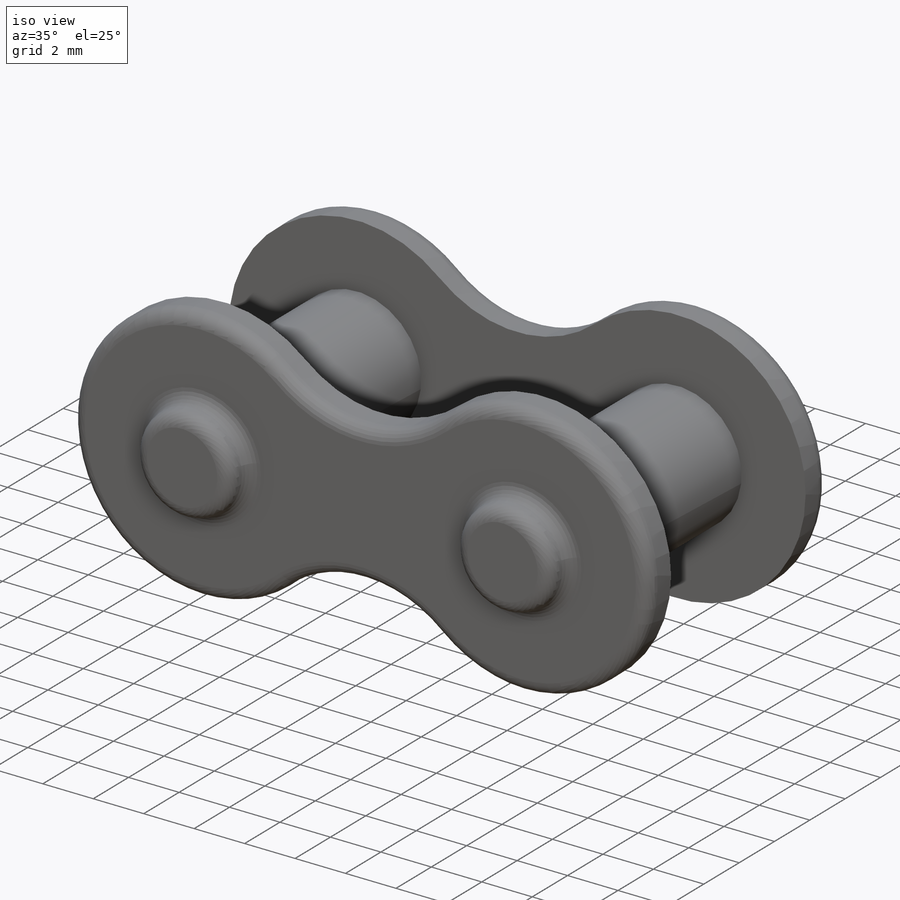
[diagram: iso view]
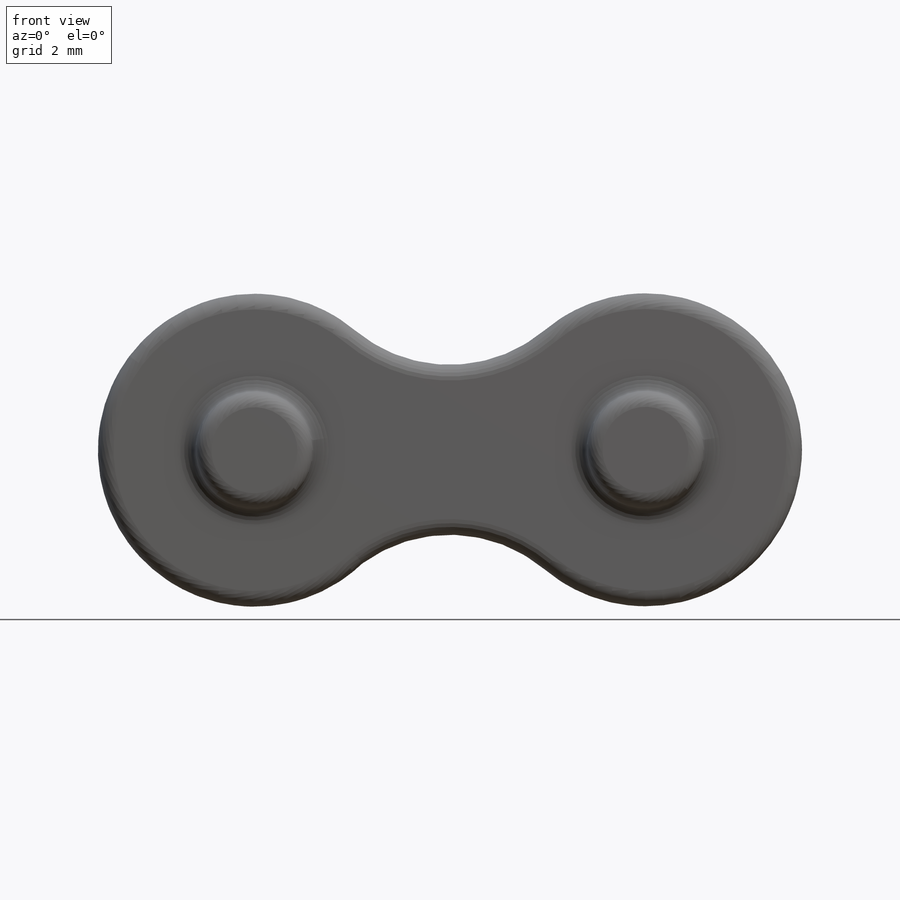
[diagram: front view]
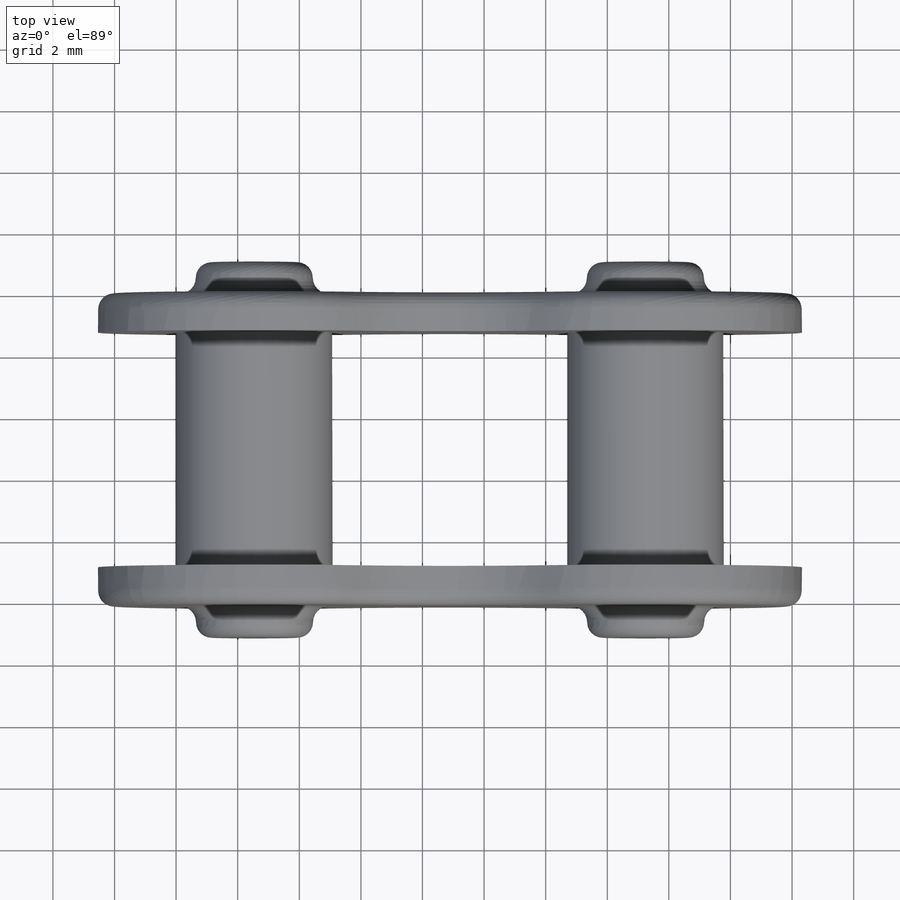
[diagram: top view]
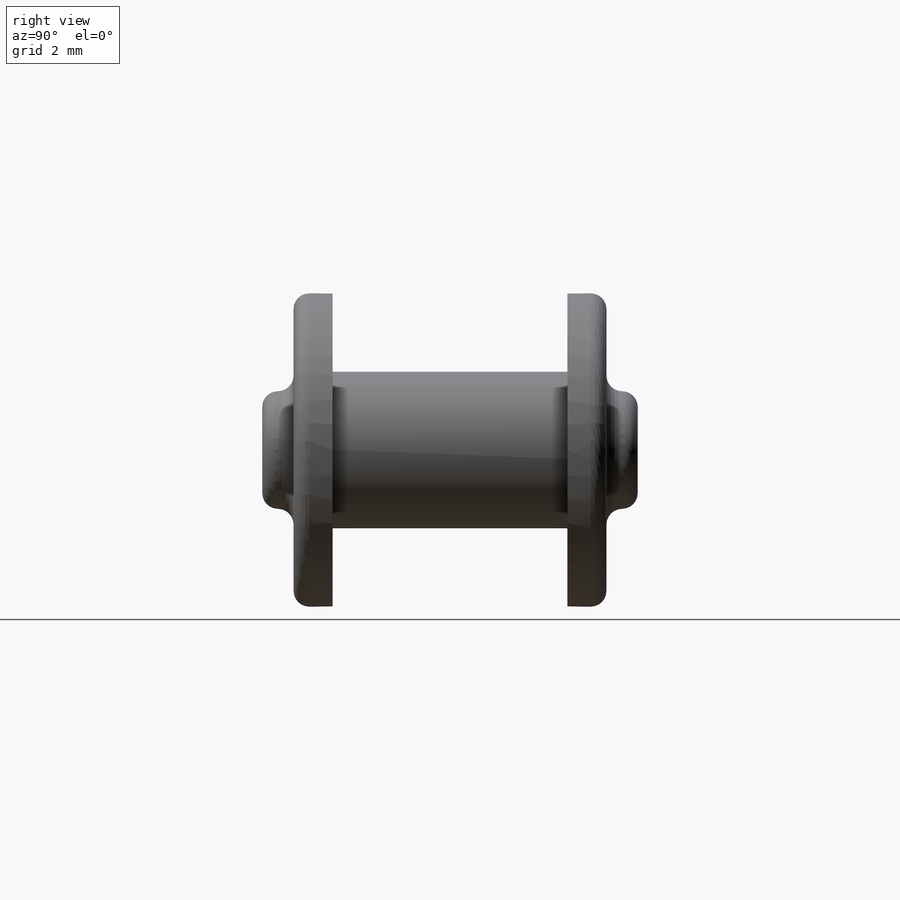
[diagram: right view]
SOLIDWORKS PART (.sldprt)
format: sldprt  version: not decoded by parser v0  size: 347,136 bytes
history: native  units: mm
features: sketch x3, extrude x3, mirror x2, fillet x2, material x1, plane x1 (+12 scaffold rows collapsed)
feature tree (24):
  scaffold x12  (default folders/planes/origin — collapsed)
  material  "Material <not specified>"
  sketch  "Sketch1"  dims[c1.D1=10.16mm c1.D2=10.16mm c1.D4=~30.613482mm c1.D3=12.7mm c2.D4=17.78mm]
  extrude  "Boss-Extrude1"  Depth=1.27mm
  sketch  "Sketch2"  dims[D1=5.08mm]
  extrude  "Boss-Extrude2"  Depth=7.62mm
  plane  "Plane1"
  mirror  "Mirror1"
  sketch  "Sketch3"  dims[D1=3.81mm]
  extrude  "Boss-Extrude3"  Depth=1.016mm
  fillet  "Fillet1"  Radius=0.508mm
  fillet  "Fillet2"  Radius=0.508mm
  mirror  "Mirror3"
decode coverage: 8 of 10 modeling features carry decoded parameters
note: ~ marks probable driven/reference dimensions
note: suppression state not decoded; provenance and decode notes live in map.json
